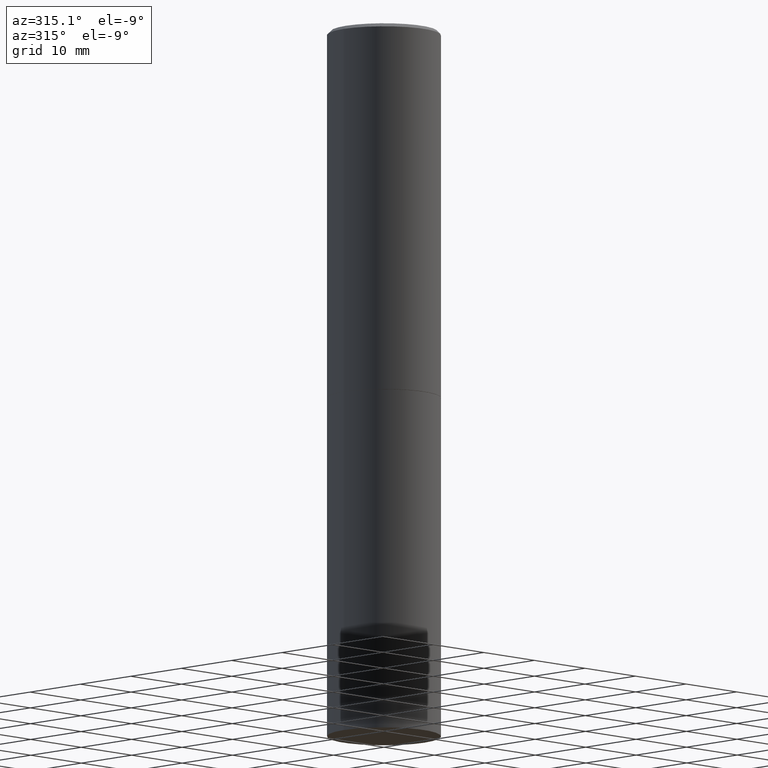
[diagram: clean part render]
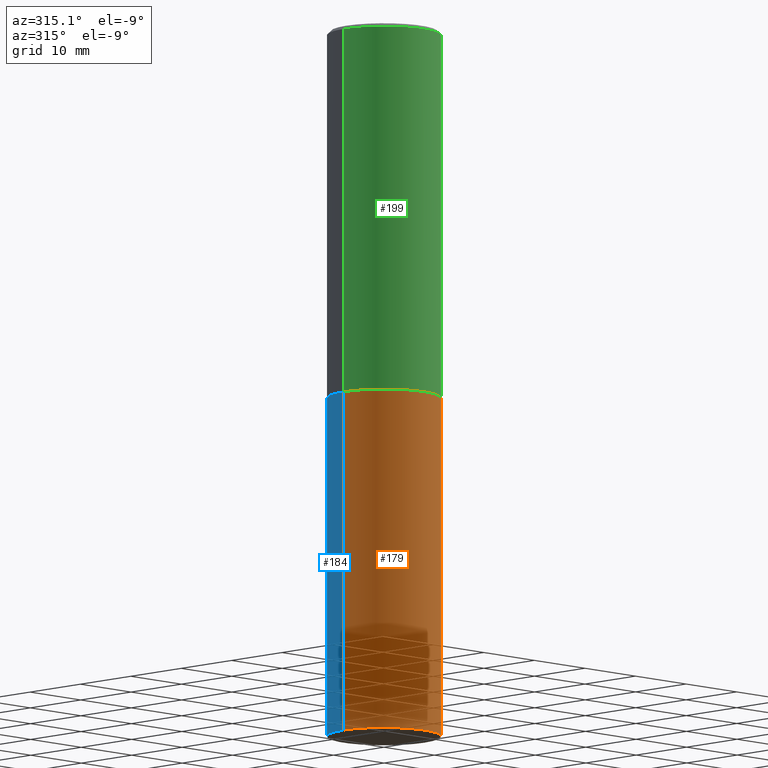
[diagram: same view with three faces highlighted in distinct colors, each labeled with its STEP entity id]
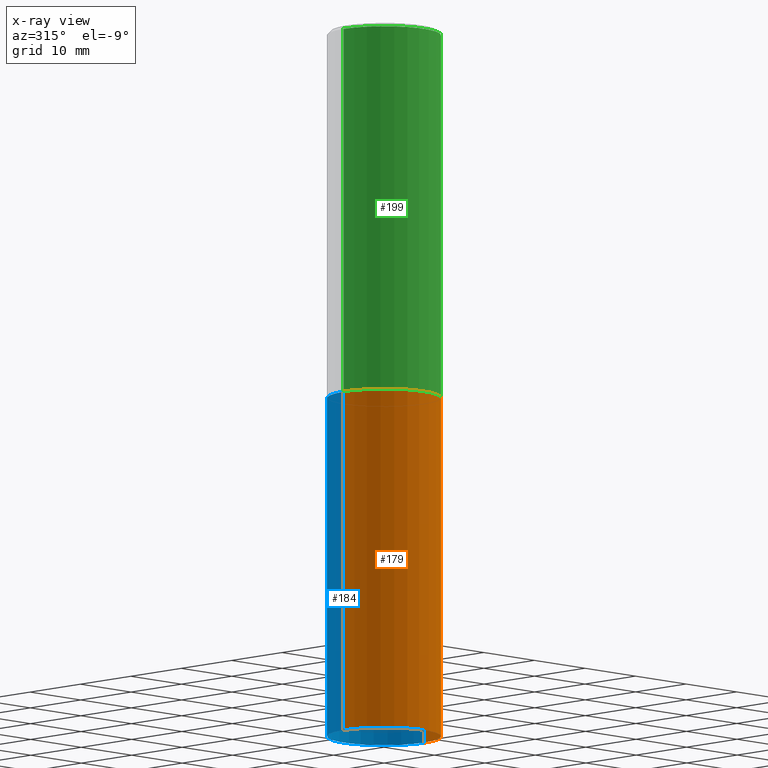
[diagram: x-ray of the same camera — body ghosted, the three highlighted faces saturated]
A machine part, auxiliary view with three faces highlighted in distinct colors.
The next image is the same camera in x-ray (body ghosted, the three faces saturated) — at least one of them is partly hidden behind the body in this view.
Their STEP definitions:

[orange] entity #179 — the highlighted cylindrical surface (partial cylindrical patch) has radius 7.9997 mm, axis along (-0, 0, 1).
#17 = AXIS2_PLACEMENT_3D ( 'NONE', #34, #196, #230 ) ;
#32 = ORIENTED_EDGE ( 'NONE', *, *, #110, .F. ) ;
#34 = CARTESIAN_POINT ( 'NONE',  ( 0.000000000000000000, 0.000000000000000000, 0.000000000000000000 ) ) ;
#67 = VERTEX_POINT ( 'NONE', #85 ) ;
#81 = VERTEX_POINT ( 'NONE', #304 ) ;
#85 = CARTESIAN_POINT ( 'NONE',  ( -0.3149500000000000077, -8.209006967676138246E-15, -3.937000000000000277 ) ) ;
#87 = EDGE_LOOP ( 'NONE', ( #32, #235, #128, #337 ) ) ;
#102 = CIRCLE ( 'NONE', #269, 0.3149500000000000077 ) ;
#110 = EDGE_CURVE ( 'NONE', #67, #81, #329, .T. ) ;
#118 = CYLINDRICAL_SURFACE ( 'NONE', #17, 0.3149500000000000077 ) ;
#128 = ORIENTED_EDGE ( 'NONE', *, *, #208, .T. ) ;
#147 = DIRECTION ( 'NONE',  ( -2.445468806185136597E-29, 3.491481338843145583E-15, 1.000000000000000000 ) ) ;
#149 = DIRECTION ( 'NONE',  ( -2.445468806185136597E-29, 3.491481338843145583E-15, 1.000000000000000000 ) ) ;
#166 = EDGE_CURVE ( 'NONE', #81, #361, #218, .T. ) ;
#172 = CARTESIAN_POINT ( 'NONE',  ( 0.3149500000000000077, -1.594524612636275486E-14, -3.937000000000000277 ) ) ;
#174 = CARTESIAN_POINT ( 'NONE',  ( 5.006363740022211120E-29, -7.147760596879686624E-15, -2.047199999999999687 ) ) ;
#179 = ADVANCED_FACE ( 'NONE', ( #200 ), #118, .T. ) ;
#181 = CARTESIAN_POINT ( 'NONE',  ( 0.3149500000000000077, -9.347044692216978073E-15, -2.047199999999999687 ) ) ;
#196 = DIRECTION ( 'NONE',  ( -2.445468806185136597E-29, 3.491481338843145583E-15, 1.000000000000000000 ) ) ;
#200 = FACE_OUTER_BOUND ( 'NONE', #87, .T. ) ;
#208 = EDGE_CURVE ( 'NONE', #266, #361, #363, .T. ) ;
#209 = CARTESIAN_POINT ( 'NONE',  ( 9.627810689950883669E-29, -1.374596203102546341E-14, -3.937000000000000277 ) ) ;
#218 = CIRCLE ( 'NONE', #342, 0.3149500000000000077 ) ;
#222 = CARTESIAN_POINT ( 'NONE',  ( -0.3149500000000000077, 2.237854346276435590E-15, -1.549218606675782676E-29 ) ) ;
#230 = DIRECTION ( 'NONE',  ( 1.000000000000000000, -6.982962677686266711E-15, 4.876176775795936353E-29 ) ) ;
#235 = ORIENTED_EDGE ( 'NONE', *, *, #293, .T. ) ;
#262 = VECTOR ( 'NONE', #309, 39.37007874015748143 ) ;
#266 = VERTEX_POINT ( 'NONE', #172 ) ;
#269 = AXIS2_PLACEMENT_3D ( 'NONE', #209, #149, #349 ) ;
#293 = EDGE_CURVE ( 'NONE', #67, #266, #102, .T. ) ;
#297 = DIRECTION ( 'NONE',  ( -2.445468806185136877E-29, 3.491481338843145188E-15, 1.000000000000000000 ) ) ;
#304 = CARTESIAN_POINT ( 'NONE',  ( -0.3149500000000000077, -8.209006967676138246E-15, -2.047199999999999687 ) ) ;
#308 = CARTESIAN_POINT ( 'NONE',  ( 0.3149500000000000077, -2.199284095337289871E-15, 1.535751875536930130E-29 ) ) ;
#309 = DIRECTION ( 'NONE',  ( -2.445468806185136877E-29, 3.491481338843145188E-15, 1.000000000000000000 ) ) ;
#329 = LINE ( 'NONE', #222, #334 ) ;
#334 = VECTOR ( 'NONE', #297, 39.37007874015748143 ) ;
#337 = ORIENTED_EDGE ( 'NONE', *, *, #166, .F. ) ;
#342 = AXIS2_PLACEMENT_3D ( 'NONE', #174, #147, #364 ) ;
#349 = DIRECTION ( 'NONE',  ( 1.000000000000000000, -6.982962677686269866E-15, 0.000000000000000000 ) ) ;
#361 = VERTEX_POINT ( 'NONE', #181 ) ;
#363 = LINE ( 'NONE', #308, #262 ) ;
#364 = DIRECTION ( 'NONE',  ( 1.000000000000000000, -6.982962677686269866E-15, 0.000000000000000000 ) ) ;

[blue] entity #184 — the highlighted cylindrical surface (partial cylindrical patch) has radius 7.9997 mm, axis along (-0, 0, 1).
#25 = CARTESIAN_POINT ( 'NONE',  ( 5.006363740022211120E-29, -7.147760596879686624E-15, -2.047199999999999687 ) ) ;
#30 = DIRECTION ( 'NONE',  ( -2.445468806185136597E-29, 3.491481338843145583E-15, 1.000000000000000000 ) ) ;
#51 = EDGE_CURVE ( 'NONE', #361, #81, #306, .T. ) ;
#56 = ORIENTED_EDGE ( 'NONE', *, *, #141, .T. ) ;
#60 = AXIS2_PLACEMENT_3D ( 'NONE', #177, #30, #145 ) ;
#67 = VERTEX_POINT ( 'NONE', #85 ) ;
#78 = EDGE_LOOP ( 'NONE', ( #56, #154, #282, #295 ) ) ;
#81 = VERTEX_POINT ( 'NONE', #304 ) ;
#85 = CARTESIAN_POINT ( 'NONE',  ( -0.3149500000000000077, -8.209006967676138246E-15, -3.937000000000000277 ) ) ;
#94 = FACE_OUTER_BOUND ( 'NONE', #78, .T. ) ;
#104 = DIRECTION ( 'NONE',  ( 1.000000000000000000, -6.982962677686269866E-15, 0.000000000000000000 ) ) ;
#110 = EDGE_CURVE ( 'NONE', #67, #81, #329, .T. ) ;
#135 = DIRECTION ( 'NONE',  ( -2.445468806185136597E-29, 3.491481338843145583E-15, 1.000000000000000000 ) ) ;
#141 = EDGE_CURVE ( 'NONE', #266, #67, #212, .T. ) ;
#145 = DIRECTION ( 'NONE',  ( 1.000000000000000000, -6.982962677686266711E-15, 4.876176775795936353E-29 ) ) ;
#154 = ORIENTED_EDGE ( 'NONE', *, *, #110, .T. ) ;
#172 = CARTESIAN_POINT ( 'NONE',  ( 0.3149500000000000077, -1.594524612636275486E-14, -3.937000000000000277 ) ) ;
#177 = CARTESIAN_POINT ( 'NONE',  ( 0.000000000000000000, 0.000000000000000000, 0.000000000000000000 ) ) ;
#181 = CARTESIAN_POINT ( 'NONE',  ( 0.3149500000000000077, -9.347044692216978073E-15, -2.047199999999999687 ) ) ;
#184 = ADVANCED_FACE ( 'NONE', ( #94 ), #313, .T. ) ;
#208 = EDGE_CURVE ( 'NONE', #266, #361, #363, .T. ) ;
#212 = CIRCLE ( 'NONE', #239, 0.3149500000000000077 ) ;
#222 = CARTESIAN_POINT ( 'NONE',  ( -0.3149500000000000077, 2.237854346276435590E-15, -1.549218606675782676E-29 ) ) ;
#239 = AXIS2_PLACEMENT_3D ( 'NONE', #302, #135, #350 ) ;
#244 = AXIS2_PLACEMENT_3D ( 'NONE', #25, #251, #104 ) ;
#251 = DIRECTION ( 'NONE',  ( -2.445468806185136597E-29, 3.491481338843145583E-15, 1.000000000000000000 ) ) ;
#262 = VECTOR ( 'NONE', #309, 39.37007874015748143 ) ;
#266 = VERTEX_POINT ( 'NONE', #172 ) ;
#282 = ORIENTED_EDGE ( 'NONE', *, *, #51, .F. ) ;
#295 = ORIENTED_EDGE ( 'NONE', *, *, #208, .F. ) ;
#297 = DIRECTION ( 'NONE',  ( -2.445468806185136877E-29, 3.491481338843145188E-15, 1.000000000000000000 ) ) ;
#302 = CARTESIAN_POINT ( 'NONE',  ( 9.627810689950883669E-29, -1.374596203102546341E-14, -3.937000000000000277 ) ) ;
#304 = CARTESIAN_POINT ( 'NONE',  ( -0.3149500000000000077, -8.209006967676138246E-15, -2.047199999999999687 ) ) ;
#306 = CIRCLE ( 'NONE', #244, 0.3149500000000000077 ) ;
#308 = CARTESIAN_POINT ( 'NONE',  ( 0.3149500000000000077, -2.199284095337289871E-15, 1.535751875536930130E-29 ) ) ;
#309 = DIRECTION ( 'NONE',  ( -2.445468806185136877E-29, 3.491481338843145188E-15, 1.000000000000000000 ) ) ;
#313 = CYLINDRICAL_SURFACE ( 'NONE', #60, 0.3149500000000000077 ) ;
#329 = LINE ( 'NONE', #222, #334 ) ;
#334 = VECTOR ( 'NONE', #297, 39.37007874015748143 ) ;
#350 = DIRECTION ( 'NONE',  ( 1.000000000000000000, -6.982962677686269866E-15, 0.000000000000000000 ) ) ;
#361 = VERTEX_POINT ( 'NONE', #181 ) ;
#363 = LINE ( 'NONE', #308, #262 ) ;

[green] entity #199 — the highlighted cylindrical surface (partial cylindrical patch) has radius 7.9997 mm, axis along (-0, 0, 1).
#6 = EDGE_CURVE ( 'NONE', #115, #343, #211, .T. ) ;
#11 = VERTEX_POINT ( 'NONE', #112 ) ;
#47 = LINE ( 'NONE', #332, #152 ) ;
#50 = CIRCLE ( 'NONE', #351, 0.3149500000000000077 ) ;
#59 = AXIS2_PLACEMENT_3D ( 'NONE', #132, #189, #193 ) ;
#65 = DIRECTION ( 'NONE',  ( -2.445468806185136877E-29, 3.491481338843145188E-15, 1.000000000000000000 ) ) ;
#72 = FACE_OUTER_BOUND ( 'NONE', #303, .T. ) ;
#100 = DIRECTION ( 'NONE',  ( -2.445468806185136597E-29, 3.491481338843145583E-15, 1.000000000000000000 ) ) ;
#103 = ORIENTED_EDGE ( 'NONE', *, *, #6, .F. ) ;
#109 = ORIENTED_EDGE ( 'NONE', *, *, #127, .F. ) ;
#112 = CARTESIAN_POINT ( 'NONE',  ( 0.3149500000000000077, -9.343553210878133488E-15, -2.046199999999999797 ) ) ;
#115 = VERTEX_POINT ( 'NONE', #214 ) ;
#127 = EDGE_CURVE ( 'NONE', #314, #115, #47, .T. ) ;
#132 = CARTESIAN_POINT ( 'NONE',  ( 4.890937612370289799E-31, -6.982962677686315028E-17, -0.02000000000000006981 ) ) ;
#152 = VECTOR ( 'NONE', #326, 39.37007874015748143 ) ;
#189 = DIRECTION ( 'NONE',  ( -2.445468806185136597E-29, 3.491481338843145583E-15, 1.000000000000000000 ) ) ;
#193 = DIRECTION ( 'NONE',  ( 1.000000000000000000, -6.982962677686266711E-15, 0.000000000000000000 ) ) ;
#197 = LINE ( 'NONE', #225, #201 ) ;
#198 = DIRECTION ( 'NONE',  ( 1.000000000000000000, -6.982962677686265922E-15, 4.876176775795935232E-29 ) ) ;
#199 = ADVANCED_FACE ( 'NONE', ( #72 ), #229, .T. ) ;
#201 = VECTOR ( 'NONE', #65, 39.37007874015748143 ) ;
#206 = DIRECTION ( 'NONE',  ( 1.000000000000000000, -6.982962677686266711E-15, 0.000000000000000000 ) ) ;
#210 = ORIENTED_EDGE ( 'NONE', *, *, #270, .T. ) ;
#211 = CIRCLE ( 'NONE', #59, 0.3149499999999997302 ) ;
#214 = CARTESIAN_POINT ( 'NONE',  ( -0.3149499999999997302, 2.129454468560424601E-15, -0.02000000000000006981 ) ) ;
#225 = CARTESIAN_POINT ( 'NONE',  ( 0.3149499999999998967, -2.199284095337288688E-15, 1.535751875536929289E-29 ) ) ;
#226 = ORIENTED_EDGE ( 'NONE', *, *, #305, .T. ) ;
#229 = CYLINDRICAL_SURFACE ( 'NONE', #298, 0.3149499999999998967 ) ;
#236 = CARTESIAN_POINT ( 'NONE',  ( 5.003918271216025517E-29, -7.144269115540843617E-15, -2.046199999999999797 ) ) ;
#270 = EDGE_CURVE ( 'NONE', #11, #343, #197, .T. ) ;
#298 = AXIS2_PLACEMENT_3D ( 'NONE', #311, #336, #198 ) ;
#303 = EDGE_LOOP ( 'NONE', ( #109, #226, #210, #103 ) ) ;
#305 = EDGE_CURVE ( 'NONE', #314, #11, #50, .T. ) ;
#311 = CARTESIAN_POINT ( 'NONE',  ( 0.000000000000000000, 0.000000000000000000, 0.000000000000000000 ) ) ;
#314 = VERTEX_POINT ( 'NONE', #321 ) ;
#318 = CARTESIAN_POINT ( 'NONE',  ( 0.3149499999999997302, -2.230543471175005478E-15, -0.02000000000000006981 ) ) ;
#321 = CARTESIAN_POINT ( 'NONE',  ( -0.3149500000000000077, -1.369195024882416092E-15, -2.046199999999999797 ) ) ;
#326 = DIRECTION ( 'NONE',  ( -2.445468806185136877E-29, 3.491481338843145188E-15, 1.000000000000000000 ) ) ;
#332 = CARTESIAN_POINT ( 'NONE',  ( -0.3149499999999998967, 2.237854346276434801E-15, -1.549218606675782116E-29 ) ) ;
#336 = DIRECTION ( 'NONE',  ( -2.445468806185136597E-29, 3.491481338843145583E-15, 1.000000000000000000 ) ) ;
#343 = VERTEX_POINT ( 'NONE', #318 ) ;
#351 = AXIS2_PLACEMENT_3D ( 'NONE', #236, #100, #206 ) ;